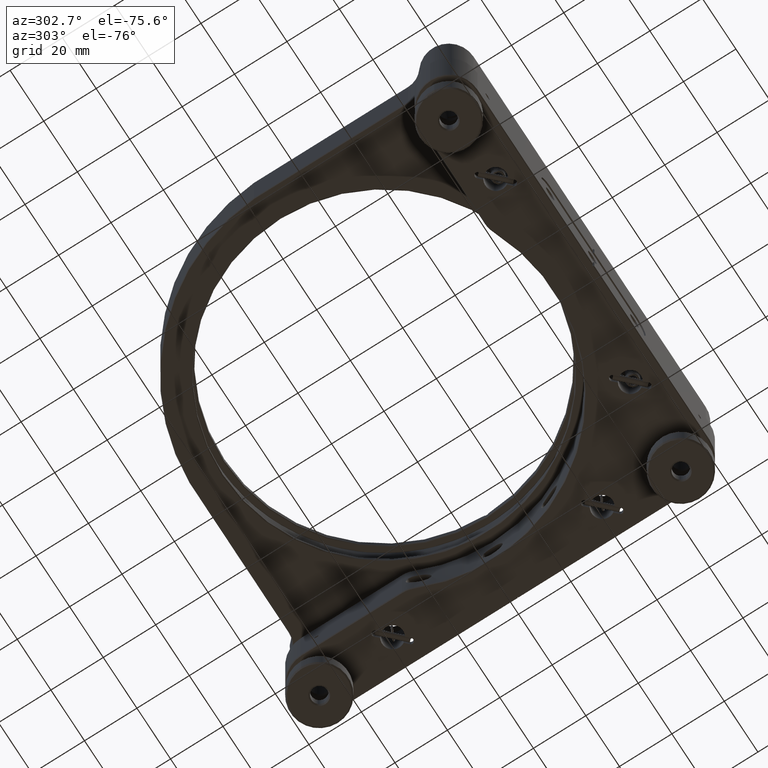
[diagram: clean part render]
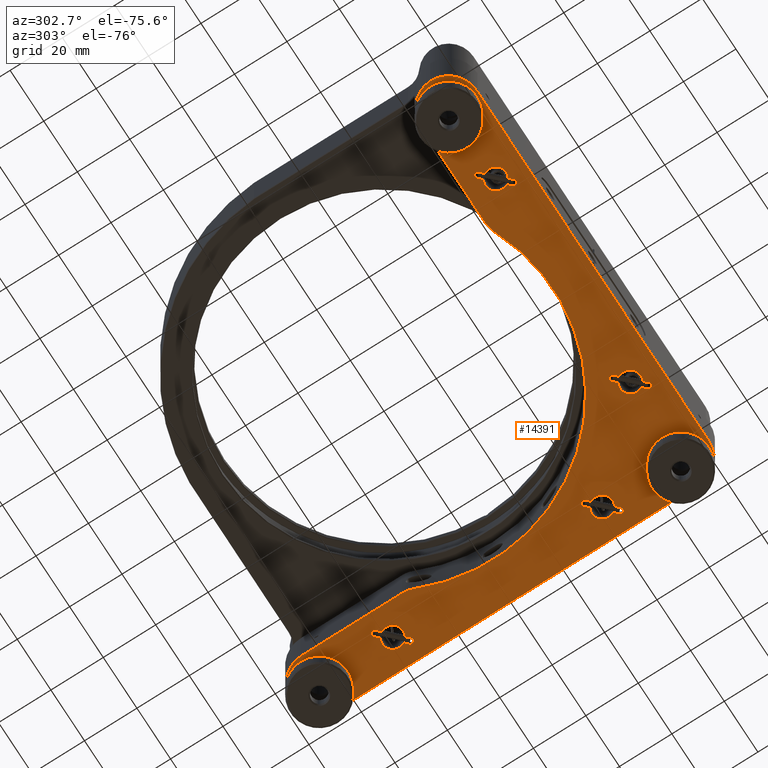
[diagram: same view with one face highlighted and labeled with its STEP entity id]
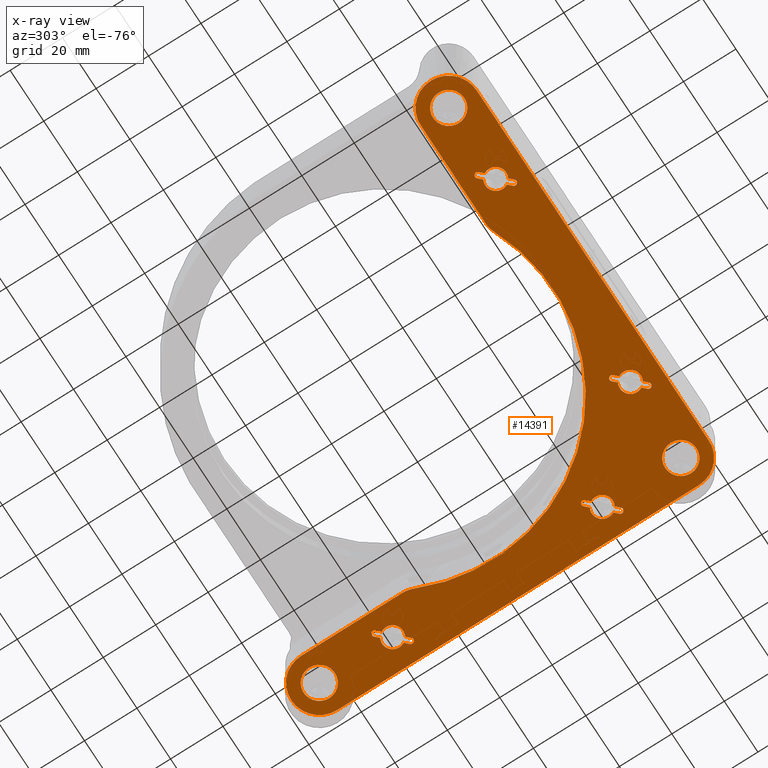
[diagram: x-ray of the same camera — body ghosted, the highlighted face saturated]
A machine part, auxiliary view. The second image highlights one B-rep face of the part: STEP entity #14391.
The next image is the same camera in x-ray: the body ghosted, the highlighted face saturated — about 0% of this face is hidden behind the body in this view.
In plain terms, the highlighted planar face has unit normal (-0, 0, 1).
Its self-contained STEP definition (entity closure, byte-faithful):
#23 = EDGE_CURVE ( 'NONE', #15942, #5312, #67, .T. ) ;
#67 = LINE ( 'NONE', #15234, #15540 ) ;
#164 = ORIENTED_EDGE ( 'NONE', *, *, #16631, .T. ) ;
#216 = CARTESIAN_POINT ( 'NONE',  ( 72.47170194114845287, -40.98677770065665271, -11.00000000000000000 ) ) ;
#254 = ORIENTED_EDGE ( 'NONE', *, *, #13206, .T. ) ;
#339 = CIRCLE ( 'NONE', #1488, 4.000000000000010658 ) ;
#356 = ORIENTED_EDGE ( 'NONE', *, *, #3056, .T. ) ;
#361 = VERTEX_POINT ( 'NONE', #8864 ) ;
#375 = VERTEX_POINT ( 'NONE', #14433 ) ;
#386 = VERTEX_POINT ( 'NONE', #12987 ) ;
#390 = VECTOR ( 'NONE', #3103, 1000.000000000000000 ) ;
#508 = EDGE_CURVE ( 'NONE', #10541, #8241, #10234, .T. ) ;
#535 = VERTEX_POINT ( 'NONE', #3264 ) ;
#565 = DIRECTION ( 'NONE',  ( 0.7071067811865492381, -0.7071067811865457964, 0.000000000000000000 ) ) ;
#596 = DIRECTION ( 'NONE',  ( 0.7071067811865492381, -0.7071067811865457964, 0.000000000000000000 ) ) ;
#597 = VERTEX_POINT ( 'NONE', #10413 ) ;
#655 = AXIS2_PLACEMENT_3D ( 'NONE', #17487, #795, #10389 ) ;
#683 = AXIS2_PLACEMENT_3D ( 'NONE', #10656, #10931, #13671 ) ;
#696 = VECTOR ( 'NONE', #2610, 1000.000000000000114 ) ;
#720 = CARTESIAN_POINT ( 'NONE',  ( -68.99999999999998579, -69.00000000000001421, -11.00000000000000000 ) ) ;
#774 = DIRECTION ( 'NONE',  ( -0.000000000000000000, 0.000000000000000000, 1.000000000000000000 ) ) ;
#782 = CARTESIAN_POINT ( 'NONE',  ( 64.82806999099939560, 45.17193000900061861, -11.00000000000000000 ) ) ;
#783 = CARTESIAN_POINT ( 'NONE',  ( 63.00000000000002842, -69.00000000000002842, -11.00000000000000000 ) ) ;
#795 = DIRECTION ( 'NONE',  ( -0.000000000000000000, -0.000000000000000000, -1.000000000000000000 ) ) ;
#808 = ORIENTED_EDGE ( 'NONE', *, *, #13603, .F. ) ;
#856 = VERTEX_POINT ( 'NONE', #1441 ) ;
#869 = LINE ( 'NONE', #6436, #11494 ) ;
#877 = VERTEX_POINT ( 'NONE', #7117 ) ;
#886 = CARTESIAN_POINT ( 'NONE',  ( 34.08560787075354170, -65.57053211124527081, -11.00000000000000000 ) ) ;
#894 = DIRECTION ( 'NONE',  ( -1.000000000000000000, 0.000000000000000000, 0.000000000000000000 ) ) ;
#901 = VERTEX_POINT ( 'NONE', #2986 ) ;
#902 = DIRECTION ( 'NONE',  ( 1.000000000000000000, 0.000000000000000000, 0.000000000000000000 ) ) ;
#915 = LINE ( 'NONE', #9326, #5105 ) ;
#931 = DIRECTION ( 'NONE',  ( 1.000000000000000000, 0.000000000000000000, 0.000000000000000000 ) ) ;
#979 = CARTESIAN_POINT ( 'NONE',  ( 70.98677770065671666, -42.47170194114839603, -11.00000000000000000 ) ) ;
#985 = VECTOR ( 'NONE', #8300, 1000.000000000000114 ) ;
#1055 = DIRECTION ( 'NONE',  ( 0.000000000000000000, -0.000000000000000000, -1.000000000000000000 ) ) ;
#1069 = EDGE_CURVE ( 'NONE', #361, #15789, #15867, .T. ) ;
#1080 = CIRCLE ( 'NONE', #17397, 1.049999999999995381 ) ;
#1084 = CARTESIAN_POINT ( 'NONE',  ( 39.00000000000003553, -69.00000000000002842, -11.00000000000000000 ) ) ;
#1137 = DIRECTION ( 'NONE',  ( 1.000000000000000000, 0.000000000000000000, 0.000000000000000000 ) ) ;
#1167 = AXIS2_PLACEMENT_3D ( 'NONE', #4495, #10344, #8793 ) ;
#1195 = DIRECTION ( 'NONE',  ( 0.000000000000000000, -0.000000000000000000, -1.000000000000000000 ) ) ;
#1219 = CARTESIAN_POINT ( 'NONE',  ( 73.17193000900067545, 36.82806999099937428, -11.00000000000000000 ) ) ;
#1244 = AXIS2_PLACEMENT_3D ( 'NONE', #15272, #1195, #8508 ) ;
#1403 = CARTESIAN_POINT ( 'NONE',  ( -40.99999999999996447, -69.00000000000004263, -11.00000000000000000 ) ) ;
#1441 = CARTESIAN_POINT ( 'NONE',  ( -45.91439212924645830, -65.57053211124527081, -11.00000000000000000 ) ) ;
#1488 = AXIS2_PLACEMENT_3D ( 'NONE', #13750, #5502, #6788 ) ;
#1496 = LINE ( 'NONE', #14120, #4508 ) ;
#1554 = EDGE_CURVE ( 'NONE', #16897, #11020, #8594, .T. ) ;
#1592 = AXIS2_PLACEMENT_3D ( 'NONE', #3205, #10350, #13016 ) ;
#1594 = DIRECTION ( 'NONE',  ( 0.7071067811865495711, 0.7071067811865455743, 0.000000000000000000 ) ) ;
#1623 = VERTEX_POINT ( 'NONE', #5956 ) ;
#1694 = VERTEX_POINT ( 'NONE', #7241 ) ;
#1771 = EDGE_CURVE ( 'NONE', #7363, #2870, #1925, .T. ) ;
#1790 = EDGE_CURVE ( 'NONE', #7107, #3802, #10061, .T. ) ;
#1803 = AXIS2_PLACEMENT_3D ( 'NONE', #16110, #3594, #7820 ) ;
#1815 = ORIENTED_EDGE ( 'NONE', *, *, #3611, .T. ) ;
#1824 = ORIENTED_EDGE ( 'NONE', *, *, #2758, .F. ) ;
#1832 = VECTOR ( 'NONE', #6546, 1000.000000000000114 ) ;
#1865 = LINE ( 'NONE', #14309, #6238 ) ;
#1888 = CARTESIAN_POINT ( 'NONE',  ( 79.70000000000000284, -69.00000000000002842, -11.00000000000000000 ) ) ;
#1925 = LINE ( 'NONE', #8980, #12977 ) ;
#1955 = ORIENTED_EDGE ( 'NONE', *, *, #11897, .F. ) ;
#1993 = CARTESIAN_POINT ( 'NONE',  ( 0.1999999999999693134, -79.69999999999998863, -11.00000000000000000 ) ) ;
#1997 = DIRECTION ( 'NONE',  ( 0.000000000000000000, -1.000000000000000000, 0.000000000000000000 ) ) ;
#2025 = CIRCLE ( 'NONE', #9043, 6.000000000000005329 ) ;
#2089 = CARTESIAN_POINT ( 'NONE',  ( 69.00000000000002842, -69.00000000000002842, -11.00000000000000000 ) ) ;
#2124 = VECTOR ( 'NONE', #3182, 1000.000000000000000 ) ;
#2195 = EDGE_CURVE ( 'NONE', #7255, #5155, #9188, .T. ) ;
#2276 = CARTESIAN_POINT ( 'NONE',  ( 63.77806999099941265, -34.82806999099938139, -11.00000000000000000 ) ) ;
#2302 = CARTESIAN_POINT ( 'NONE',  ( 65.57053211124527081, -34.08560787075351328, -11.00000000000000000 ) ) ;
#2339 = LINE ( 'NONE', #9216, #6085 ) ;
#2361 = VECTOR ( 'NONE', #12176, 1000.000000000000000 ) ;
#2369 = CARTESIAN_POINT ( 'NONE',  ( 75.00000000000001421, 69.00000000000001421, -11.00000000000000000 ) ) ;
#2407 = CIRCLE ( 'NONE', #13224, 4.000000000000010658 ) ;
#2434 = CIRCLE ( 'NONE', #13831, 1.049999999999995381 ) ;
#2442 = CARTESIAN_POINT ( 'NONE',  ( 64.08560787075353460, 44.42946788875474340, -11.00000000000000000 ) ) ;
#2447 = AXIS2_PLACEMENT_3D ( 'NONE', #5062, #9477, #9282 ) ;
#2468 = CARTESIAN_POINT ( 'NONE',  ( -36.08560787075347775, -72.42946788875481445, -11.00000000000000000 ) ) ;
#2561 = PLANE ( 'NONE',  #6205 ) ;
#2588 = DIRECTION ( 'NONE',  ( -0.000000000000000000, 0.000000000000000000, 1.000000000000000000 ) ) ;
#2603 = VERTEX_POINT ( 'NONE', #9362 ) ;
#2610 = DIRECTION ( 'NONE',  ( -0.7071067811865453523, -0.7071067811865497932, 0.000000000000000000 ) ) ;
#2618 = ORIENTED_EDGE ( 'NONE', *, *, #2195, .F. ) ;
#2655 = DIRECTION ( 'NONE',  ( -0.000000000000000000, 0.000000000000000000, 1.000000000000000000 ) ) ;
#2692 = DIRECTION ( 'NONE',  ( -0.000000000000000000, 0.000000000000000000, -1.000000000000000000 ) ) ;
#2748 = CARTESIAN_POINT ( 'NONE',  ( -30.43435558706626765, -58.30000000000008242, -11.00000000000000000 ) ) ;
#2758 = EDGE_CURVE ( 'NONE', #7403, #17952, #339, .T. ) ;
#2769 = VERTEX_POINT ( 'NONE', #17930 ) ;
#2870 = VERTEX_POINT ( 'NONE', #9814 ) ;
#2897 = CIRCLE ( 'NONE', #16865, 1.049999999999995381 ) ;
#2908 = CIRCLE ( 'NONE', #13698, 4.000000000000010658 ) ;
#2911 = CARTESIAN_POINT ( 'NONE',  ( -0.000000000000000000, -79.69999999999998863, -11.00000000000000000 ) ) ;
#2983 = CARTESIAN_POINT ( 'NONE',  ( 69.00000000000002842, 40.99999999999999289, -11.00000000000000000 ) ) ;
#2986 = CARTESIAN_POINT ( 'NONE',  ( 37.01322229934338282, -65.52829805885163239, -11.00000000000000000 ) ) ;
#3045 = EDGE_CURVE ( 'NONE', #18055, #6003, #10805, .T. ) ;
#3053 = VERTEX_POINT ( 'NONE', #3198 ) ;
#3056 = EDGE_CURVE ( 'NONE', #2603, #7363, #5545, .T. ) ;
#3103 = DIRECTION ( 'NONE',  ( 1.000000000000000000, -1.340017918906925940E-16, 0.000000000000000000 ) ) ;
#3141 = DIRECTION ( 'NONE',  ( 0.000000000000000000, 1.000000000000000000, 0.000000000000000000 ) ) ;
#3151 = EDGE_LOOP ( 'NONE', ( #11229, #1815, #13338, #8620, #8153, #14620, #3489, #14207, #14381, #9400, #356 ) ) ;
#3166 = DIRECTION ( 'NONE',  ( 0.000000000000000000, -0.000000000000000000, 1.000000000000000000 ) ) ;
#3182 = DIRECTION ( 'NONE',  ( 0.000000000000000000, 1.000000000000000000, 0.000000000000000000 ) ) ;
#3198 = CARTESIAN_POINT ( 'NONE',  ( 63.00000000000000000, 69.00000000000001421, -11.00000000000000000 ) ) ;
#3205 = CARTESIAN_POINT ( 'NONE',  ( 0.000000000000000000, 0.000000000000000000, -11.00000000000000000 ) ) ;
#3206 = VECTOR ( 'NONE', #3966, 1000.000000000000000 ) ;
#3244 = EDGE_CURVE ( 'NONE', #16373, #3053, #2025, .T. ) ;
#3264 = CARTESIAN_POINT ( 'NONE',  ( -0.1999999999999888256, -79.69999999999998863, -11.00000000000000000 ) ) ;
#3300 = ORIENTED_EDGE ( 'NONE', *, *, #12863, .F. ) ;
#3422 = VECTOR ( 'NONE', #11687, 1000.000000000000000 ) ;
#3456 = ORIENTED_EDGE ( 'NONE', *, *, #23, .T. ) ;
#3470 = CARTESIAN_POINT ( 'NONE',  ( -40.99999999999996447, -69.00000000000004263, -11.00000000000000000 ) ) ;
#3479 = DIRECTION ( 'NONE',  ( -0.000000000000000000, 0.000000000000000000, 1.000000000000000000 ) ) ;
#3489 = ORIENTED_EDGE ( 'NONE', *, *, #15388, .T. ) ;
#3495 = CIRCLE ( 'NONE', #15767, 4.000000000000010658 ) ;
#3527 = DIRECTION ( 'NONE',  ( -0.7071067811865492381, 0.7071067811865457964, 0.000000000000000000 ) ) ;
#3534 = CARTESIAN_POINT ( 'NONE',  ( 35.00000000000002132, -69.00000000000002842, -11.00000000000000000 ) ) ;
#3576 = DIRECTION ( 'NONE',  ( -0.000000000000000000, 0.000000000000000000, 1.000000000000000000 ) ) ;
#3594 = DIRECTION ( 'NONE',  ( 0.000000000000000000, 0.000000000000000000, 1.000000000000000000 ) ) ;
#3611 = EDGE_CURVE ( 'NONE', #2870, #3762, #11992, .T. ) ;
#3620 = AXIS2_PLACEMENT_3D ( 'NONE', #1219, #2588, #12480 ) ;
#3719 = AXIS2_PLACEMENT_3D ( 'NONE', #16884, #13983, #12713 ) ;
#3762 = VERTEX_POINT ( 'NONE', #14777 ) ;
#3769 = CARTESIAN_POINT ( 'NONE',  ( 69.00000000000002842, -79.70000000000000284, -11.00000000000000000 ) ) ;
#3802 = VERTEX_POINT ( 'NONE', #17310 ) ;
#3835 = CARTESIAN_POINT ( 'NONE',  ( 69.00000000000000000, 69.00000000000001421, -11.00000000000000000 ) ) ;
#3836 = DIRECTION ( 'NONE',  ( 0.000000000000000000, 0.000000000000000000, -1.000000000000000000 ) ) ;
#3848 = VERTEX_POINT ( 'NONE', #979 ) ;
#3875 = CIRCLE ( 'NONE', #15558, 1.049999999999995381 ) ;
#3918 = CARTESIAN_POINT ( 'NONE',  ( 35.57053211124528502, -64.08560787075353460, -11.00000000000000000 ) ) ;
#3934 = DIRECTION ( 'NONE',  ( 0.000000000000000000, -1.000000000000000000, 0.000000000000000000 ) ) ;
#3966 = DIRECTION ( 'NONE',  ( -0.7071067811865492381, 0.7071067811865457964, 0.000000000000000000 ) ) ;
#4098 = VERTEX_POINT ( 'NONE', #9994 ) ;
#4159 = AXIS2_PLACEMENT_3D ( 'NONE', #11994, #3836, #9059 ) ;
#4173 = ORIENTED_EDGE ( 'NONE', *, *, #11024, .F. ) ;
#4174 = DIRECTION ( 'NONE',  ( 1.734723475976807094E-16, -1.000000000000000000, 0.000000000000000000 ) ) ;
#4200 = FACE_BOUND ( 'NONE', #3151, .T. ) ;
#4239 = DIRECTION ( 'NONE',  ( -1.000000000000000000, 0.000000000000000000, 0.000000000000000000 ) ) ;
#4258 = EDGE_CURVE ( 'NONE', #17758, #17781, #7702, .T. ) ;
#4277 = EDGE_CURVE ( 'NONE', #1623, #13877, #10832, .T. ) ;
#4335 = CARTESIAN_POINT ( 'NONE',  ( 43.91439212924652935, -72.42946788875480024, -11.00000000000000000 ) ) ;
#4372 = AXIS2_PLACEMENT_3D ( 'NONE', #5598, #9645, #1137 ) ;
#4389 = EDGE_CURVE ( 'NONE', #14667, #5538, #5270, .T. ) ;
#4449 = CIRCLE ( 'NONE', #1244, 10.69999999999997264 ) ;
#4495 = CARTESIAN_POINT ( 'NONE',  ( 64.82806999099939560, 45.17193000900061861, -11.00000000000000000 ) ) ;
#4508 = VECTOR ( 'NONE', #4239, 1000.000000000000000 ) ;
#4545 = DIRECTION ( 'NONE',  ( 0.000000000000000000, -1.000000000000000000, 0.000000000000000000 ) ) ;
#4549 = VERTEX_POINT ( 'NONE', #5303 ) ;
#4613 = CARTESIAN_POINT ( 'NONE',  ( 72.47170194114843866, 39.01322229934334729, -11.00000000000000000 ) ) ;
#4716 = CARTESIAN_POINT ( 'NONE',  ( 64.82806999099940981, -34.82806999099938139, -11.00000000000000000 ) ) ;
#4741 = CIRCLE ( 'NONE', #4159, 1.049999999999995381 ) ;
#4813 = CARTESIAN_POINT ( 'NONE',  ( 79.69999999999998863, 0.2000000000000241029, -11.00000000000000000 ) ) ;
#4824 = DIRECTION ( 'NONE',  ( 0.000000000000000000, 0.000000000000000000, 1.000000000000000000 ) ) ;
#4825 = EDGE_CURVE ( 'NONE', #17952, #597, #7558, .T. ) ;
#4841 = CARTESIAN_POINT ( 'NONE',  ( -46.22193000900058735, -64.82806999099940981, -11.00000000000000000 ) ) ;
#4856 = DIRECTION ( 'NONE',  ( 0.000000000000000000, 1.000000000000000000, 0.000000000000000000 ) ) ;
#4942 = EDGE_CURVE ( 'NONE', #17569, #5760, #6501, .T. ) ;
#4995 = CARTESIAN_POINT ( 'NONE',  ( -68.99999999999998579, -69.00000000000001421, -11.00000000000000000 ) ) ;
#5062 = CARTESIAN_POINT ( 'NONE',  ( 69.00000000000002842, 40.99999999999999289, -11.00000000000000000 ) ) ;
#5105 = VECTOR ( 'NONE', #13533, 1000.000000000000114 ) ;
#5122 = EDGE_CURVE ( 'NONE', #6003, #5915, #16503, .T. ) ;
#5155 = VERTEX_POINT ( 'NONE', #17680 ) ;
#5163 = ORIENTED_EDGE ( 'NONE', *, *, #11761, .T. ) ;
#5167 = EDGE_CURVE ( 'NONE', #17781, #15942, #9573, .T. ) ;
#5270 = CIRCLE ( 'NONE', #6444, 1.049999999999995381 ) ;
#5292 = DIRECTION ( 'NONE',  ( 0.000000000000000000, 0.000000000000000000, 1.000000000000000000 ) ) ;
#5293 = EDGE_CURVE ( 'NONE', #7943, #856, #10023, .T. ) ;
#5303 = CARTESIAN_POINT ( 'NONE',  ( -79.69999999999996021, -69.00000000000002842, -11.00000000000000000 ) ) ;
#5312 = VERTEX_POINT ( 'NONE', #9751 ) ;
#5411 = ORIENTED_EDGE ( 'NONE', *, *, #3045, .F. ) ;
#5449 = ORIENTED_EDGE ( 'NONE', *, *, #5122, .F. ) ;
#5502 = DIRECTION ( 'NONE',  ( 0.000000000000000000, 0.000000000000000000, -1.000000000000000000 ) ) ;
#5534 = EDGE_CURVE ( 'NONE', #8771, #17209, #2434, .T. ) ;
#5538 = VERTEX_POINT ( 'NONE', #10457 ) ;
#5545 = CIRCLE ( 'NONE', #1167, 1.049999999999995381 ) ;
#5547 = VERTEX_POINT ( 'NONE', #6061 ) ;
#5598 = CARTESIAN_POINT ( 'NONE',  ( -68.99999999999998579, -69.00000000000004263, -11.00000000000000000 ) ) ;
#5658 = EDGE_LOOP ( 'NONE', ( #2618, #16552, #5914, #1955, #9385, #4173, #17061, #12234, #3300, #16867, #14994 ) ) ;
#5662 = DIRECTION ( 'NONE',  ( -0.000000000000000000, 0.000000000000000000, 1.000000000000000000 ) ) ;
#5724 = EDGE_CURVE ( 'NONE', #877, #10687, #15253, .T. ) ;
#5760 = VERTEX_POINT ( 'NONE', #3769 ) ;
#5781 = DIRECTION ( 'NONE',  ( 1.000000000000000000, 3.576749435003731010E-15, 0.000000000000000000 ) ) ;
#5849 = VERTEX_POINT ( 'NONE', #13928 ) ;
#5870 = LINE ( 'NONE', #15746, #11814 ) ;
#5892 = VERTEX_POINT ( 'NONE', #216 ) ;
#5914 = ORIENTED_EDGE ( 'NONE', *, *, #14325, .F. ) ;
#5915 = VERTEX_POINT ( 'NONE', #12829 ) ;
#5956 = CARTESIAN_POINT ( 'NONE',  ( -36.99999999999995737, -69.00000000000004263, -11.00000000000000000 ) ) ;
#5982 = DIRECTION ( 'NONE',  ( -1.000000000000000000, 0.000000000000000000, 0.000000000000000000 ) ) ;
#6003 = VERTEX_POINT ( 'NONE', #14362 ) ;
#6034 = VECTOR ( 'NONE', #13174, 1000.000000000000114 ) ;
#6061 = CARTESIAN_POINT ( 'NONE',  ( 70.98677770065670245, 37.52829805885160397, -11.00000000000000000 ) ) ;
#6085 = VECTOR ( 'NONE', #3527, 1000.000000000000000 ) ;
#6141 = EDGE_LOOP ( 'NONE', ( #11155, #254, #6906, #6507, #8063, #11518, #15291, #13748, #7187, #8245, #164 ) ) ;
#6205 = AXIS2_PLACEMENT_3D ( 'NONE', #12358, #2655, #10897 ) ;
#6238 = VECTOR ( 'NONE', #14486, 1000.000000000000114 ) ;
#6255 = DIRECTION ( 'NONE',  ( -0.000000000000000000, 0.000000000000000000, 1.000000000000000000 ) ) ;
#6282 = CARTESIAN_POINT ( 'NONE',  ( -39.01322229934331887, -72.47170194114845287, -11.00000000000000000 ) ) ;
#6304 = EDGE_LOOP ( 'NONE', ( #808, #6586 ) ) ;
#6320 = DIRECTION ( 'NONE',  ( -1.000000000000000000, 0.000000000000000000, 0.000000000000000000 ) ) ;
#6336 = CARTESIAN_POINT ( 'NONE',  ( 64.82806999099940981, -34.82806999099938139, -11.00000000000000000 ) ) ;
#6346 = DIRECTION ( 'NONE',  ( 0.000000000000000000, 1.000000000000000000, 0.000000000000000000 ) ) ;
#6436 = CARTESIAN_POINT ( 'NONE',  ( 64.08560787075353460, -35.57053211124525660, -11.00000000000000000 ) ) ;
#6444 = AXIS2_PLACEMENT_3D ( 'NONE', #9886, #5662, #16456 ) ;
#6492 = AXIS2_PLACEMENT_3D ( 'NONE', #17452, #3576, #4856 ) ;
#6501 = CIRCLE ( 'NONE', #8567, 10.69999999999997264 ) ;
#6507 = ORIENTED_EDGE ( 'NONE', *, *, #7086, .T. ) ;
#6537 = VERTEX_POINT ( 'NONE', #4841 ) ;
#6544 = CIRCLE ( 'NONE', #11231, 4.000000000000010658 ) ;
#6546 = DIRECTION ( 'NONE',  ( -0.7071067811865460184, 0.7071067811865489050, -0.000000000000000000 ) ) ;
#6578 = DIRECTION ( 'NONE',  ( 0.7071067811865460184, -0.7071067811865489050, 0.000000000000000000 ) ) ;
#6586 = ORIENTED_EDGE ( 'NONE', *, *, #3244, .F. ) ;
#6592 = CARTESIAN_POINT ( 'NONE',  ( 79.69999999999998863, 1.382574610353515096E-14, -11.00000000000000000 ) ) ;
#6595 = EDGE_CURVE ( 'NONE', #7816, #17246, #12999, .T. ) ;
#6622 = AXIS2_PLACEMENT_3D ( 'NONE', #4995, #4824, #902 ) ;
#6658 = DIRECTION ( 'NONE',  ( -1.000000000000000000, 0.000000000000000000, 0.000000000000000000 ) ) ;
#6679 = FACE_BOUND ( 'NONE', #6141, .T. ) ;
#6724 = CARTESIAN_POINT ( 'NONE',  ( 80.00000000000001421, 0.5000000000000486278, -11.00000000000000000 ) ) ;
#6741 = CARTESIAN_POINT ( 'NONE',  ( 58.30000000000006111, 30.43435558706632094, -11.00000000000000000 ) ) ;
#6765 = CARTESIAN_POINT ( 'NONE',  ( 58.30000000000006111, 68.99999999999998579, -11.00000000000000000 ) ) ;
#6788 = DIRECTION ( 'NONE',  ( -1.000000000000000000, 0.000000000000000000, 0.000000000000000000 ) ) ;
#6794 = CIRCLE ( 'NONE', #8551, 4.000000000000010658 ) ;
#6813 = AXIS2_PLACEMENT_3D ( 'NONE', #782, #6255, #6346 ) ;
#6841 = ORIENTED_EDGE ( 'NONE', *, *, #17358, .F. ) ;
#6877 = VERTEX_POINT ( 'NONE', #2468 ) ;
#6881 = VERTEX_POINT ( 'NONE', #13359 ) ;
#6906 = ORIENTED_EDGE ( 'NONE', *, *, #9306, .T. ) ;
#6932 = CARTESIAN_POINT ( 'NONE',  ( 79.69999999999998863, 1.382574610353515096E-14, -11.00000000000000000 ) ) ;
#6983 = DIRECTION ( 'NONE',  ( -0.000000000000000000, 0.000000000000000000, -1.000000000000000000 ) ) ;
#6988 = EDGE_CURVE ( 'NONE', #597, #5849, #16850, .T. ) ;
#6989 = ORIENTED_EDGE ( 'NONE', *, *, #5167, .T. ) ;
#7086 = EDGE_CURVE ( 'NONE', #3848, #14667, #10312, .T. ) ;
#7094 = DIRECTION ( 'NONE',  ( 0.000000000000000000, 0.000000000000000000, -1.000000000000000000 ) ) ;
#7107 = VERTEX_POINT ( 'NONE', #11782 ) ;
#7117 = CARTESIAN_POINT ( 'NONE',  ( 75.00000000000004263, -69.00000000000002842, -11.00000000000000000 ) ) ;
#7151 = CIRCLE ( 'NONE', #11540, 1.049999999999995381 ) ;
#7187 = ORIENTED_EDGE ( 'NONE', *, *, #12127, .T. ) ;
#7206 = AXIS2_PLACEMENT_3D ( 'NONE', #720, #7568, #8943 ) ;
#7235 = DIRECTION ( 'NONE',  ( 0.000000000000000000, 0.000000000000000000, -1.000000000000000000 ) ) ;
#7241 = CARTESIAN_POINT ( 'NONE',  ( -68.99999999999998579, -79.69999999999998863, -11.00000000000000000 ) ) ;
#7255 = VERTEX_POINT ( 'NONE', #6282 ) ;
#7271 = VECTOR ( 'NONE', #6578, 1000.000000000000114 ) ;
#7297 = EDGE_LOOP ( 'NONE', ( #15330, #5449, #5411, #6841, #17577, #11001, #9881, #14558, #10127, #10368, #1824 ) ) ;
#7363 = VERTEX_POINT ( 'NONE', #2442 ) ;
#7403 = VERTEX_POINT ( 'NONE', #3534 ) ;
#7434 = CIRCLE ( 'NONE', #8040, 6.000000000000005329 ) ;
#7436 = AXIS2_PLACEMENT_3D ( 'NONE', #15221, #2692, #18038 ) ;
#7558 = LINE ( 'NONE', #13144, #12934 ) ;
#7568 = DIRECTION ( 'NONE',  ( 0.000000000000000000, -0.000000000000000000, -1.000000000000000000 ) ) ;
#7696 = DIRECTION ( 'NONE',  ( 0.000000000000000000, 0.000000000000000000, 1.000000000000000000 ) ) ;
#7702 = LINE ( 'NONE', #6592, #2361 ) ;
#7816 = VERTEX_POINT ( 'NONE', #10913 ) ;
#7820 = DIRECTION ( 'NONE',  ( 1.000000000000000000, 0.000000000000000000, 0.000000000000000000 ) ) ;
#7896 = CARTESIAN_POINT ( 'NONE',  ( 64.08560787075353460, -35.57053211124525660, -11.00000000000000000 ) ) ;
#7943 = VERTEX_POINT ( 'NONE', #9359 ) ;
#8040 = AXIS2_PLACEMENT_3D ( 'NONE', #2089, #5292, #11248 ) ;
#8063 = ORIENTED_EDGE ( 'NONE', *, *, #4389, .T. ) ;
#8086 = EDGE_CURVE ( 'NONE', #5915, #7403, #2407, .T. ) ;
#8153 = ORIENTED_EDGE ( 'NONE', *, *, #1554, .T. ) ;
#8158 = FACE_BOUND ( 'NONE', #12375, .T. ) ;
#8184 = EDGE_CURVE ( 'NONE', #11416, #2769, #12067, .T. ) ;
#8214 = CIRCLE ( 'NONE', #9365, 10.69999999999997264 ) ;
#8241 = VERTEX_POINT ( 'NONE', #6765 ) ;
#8245 = ORIENTED_EDGE ( 'NONE', *, *, #5534, .T. ) ;
#8255 = CARTESIAN_POINT ( 'NONE',  ( 79.50000000000001421, 4.504103423630144120E-14, -11.00000000000000000 ) ) ;
#8300 = DIRECTION ( 'NONE',  ( -0.7071067811865460184, 0.7071067811865489050, -0.000000000000000000 ) ) ;
#8373 = CARTESIAN_POINT ( 'NONE',  ( 65.57053211124527081, 45.91439212924648672, -11.00000000000000000 ) ) ;
#8377 = CARTESIAN_POINT ( 'NONE',  ( -0.5000000000000129896, -80.00000000000001421, -11.00000000000000000 ) ) ;
#8429 = FACE_OUTER_BOUND ( 'NONE', #12867, .T. ) ;
#8457 = DIRECTION ( 'NONE',  ( 0.000000000000000000, -0.000000000000000000, -1.000000000000000000 ) ) ;
#8502 = DIRECTION ( 'NONE',  ( -1.000000000000000000, 0.000000000000000000, 0.000000000000000000 ) ) ;
#8508 = DIRECTION ( 'NONE',  ( 1.000000000000000000, 0.000000000000000000, 0.000000000000000000 ) ) ;
#8541 = CIRCLE ( 'NONE', #6492, 4.000000000000010658 ) ;
#8551 = AXIS2_PLACEMENT_3D ( 'NONE', #17609, #9317, #14882 ) ;
#8567 = AXIS2_PLACEMENT_3D ( 'NONE', #11863, #10480, #13054 ) ;
#8594 = CIRCLE ( 'NONE', #3620, 1.049999999999995381 ) ;
#8615 = DIRECTION ( 'NONE',  ( 0.000000000000000000, -0.000000000000000000, 1.000000000000000000 ) ) ;
#8620 = ORIENTED_EDGE ( 'NONE', *, *, #14784, .T. ) ;
#8626 = CARTESIAN_POINT ( 'NONE',  ( 43.17193000900066124, -73.17193000900067545, -11.00000000000000000 ) ) ;
#8729 = VECTOR ( 'NONE', #4174, 1000.000000000000000 ) ;
#8739 = VERTEX_POINT ( 'NONE', #4613 ) ;
#8771 = VERTEX_POINT ( 'NONE', #10282 ) ;
#8781 = EDGE_CURVE ( 'NONE', #9425, #2603, #10325, .T. ) ;
#8793 = DIRECTION ( 'NONE',  ( 0.000000000000000000, 1.000000000000000000, 0.000000000000000000 ) ) ;
#8850 = EDGE_CURVE ( 'NONE', #15828, #12719, #869, .T. ) ;
#8864 = CARTESIAN_POINT ( 'NONE',  ( 73.00000000000005684, 40.99999999999999289, -11.00000000000000000 ) ) ;
#8941 = CARTESIAN_POINT ( 'NONE',  ( 79.69999999999998863, 68.99999999999998579, -11.00000000000000000 ) ) ;
#8943 = DIRECTION ( 'NONE',  ( 1.000000000000000000, 0.000000000000000000, 0.000000000000000000 ) ) ;
#8962 = VERTEX_POINT ( 'NONE', #12208 ) ;
#8980 = CARTESIAN_POINT ( 'NONE',  ( 64.08560787075353460, 44.42946788875474340, -11.00000000000000000 ) ) ;
#9010 = EDGE_CURVE ( 'NONE', #9225, #12105, #13241, .T. ) ;
#9027 = EDGE_CURVE ( 'NONE', #14473, #7107, #15565, .T. ) ;
#9042 = LINE ( 'NONE', #17344, #7271 ) ;
#9043 = AXIS2_PLACEMENT_3D ( 'NONE', #3835, #11074, #3934 ) ;
#9059 = DIRECTION ( 'NONE',  ( -1.000000000000000000, 0.000000000000000000, 0.000000000000000000 ) ) ;
#9069 = DIRECTION ( 'NONE',  ( 0.000000000000000000, 1.000000000000000000, 0.000000000000000000 ) ) ;
#9139 = LINE ( 'NONE', #13534, #13119 ) ;
#9150 = ORIENTED_EDGE ( 'NONE', *, *, #14519, .T. ) ;
#9187 = EDGE_CURVE ( 'NONE', #5538, #5892, #9824, .T. ) ;
#9188 = CIRCLE ( 'NONE', #7436, 4.000000000000010658 ) ;
#9216 = CARTESIAN_POINT ( 'NONE',  ( 65.57053211124527081, 45.91439212924648672, -11.00000000000000000 ) ) ;
#9225 = VERTEX_POINT ( 'NONE', #12660 ) ;
#9238 = ORIENTED_EDGE ( 'NONE', *, *, #13372, .T. ) ;
#9267 = ORIENTED_EDGE ( 'NONE', *, *, #10920, .T. ) ;
#9282 = DIRECTION ( 'NONE',  ( 0.000000000000000000, -1.000000000000000000, 0.000000000000000000 ) ) ;
#9306 = EDGE_CURVE ( 'NONE', #386, #3848, #8541, .T. ) ;
#9317 = DIRECTION ( 'NONE',  ( -0.000000000000000000, 0.000000000000000000, 1.000000000000000000 ) ) ;
#9326 = CARTESIAN_POINT ( 'NONE',  ( 35.57053211124528502, -64.08560787075353460, -11.00000000000000000 ) ) ;
#9359 = CARTESIAN_POINT ( 'NONE',  ( -44.47170194114836050, -67.01322229934338282, -11.00000000000000000 ) ) ;
#9362 = CARTESIAN_POINT ( 'NONE',  ( 63.77806999099939844, 45.17193000900061861, -11.00000000000000000 ) ) ;
#9365 = AXIS2_PLACEMENT_3D ( 'NONE', #15077, #14986, #16527 ) ;
#9385 = ORIENTED_EDGE ( 'NONE', *, *, #4277, .F. ) ;
#9400 = ORIENTED_EDGE ( 'NONE', *, *, #8781, .T. ) ;
#9425 = VERTEX_POINT ( 'NONE', #13647 ) ;
#9477 = DIRECTION ( 'NONE',  ( 0.000000000000000000, -0.000000000000000000, 1.000000000000000000 ) ) ;
#9498 = CARTESIAN_POINT ( 'NONE',  ( 72.42946788875480024, 36.08560787075350618, -11.00000000000000000 ) ) ;
#9507 = LINE ( 'NONE', #6932, #8729 ) ;
#9560 = VECTOR ( 'NONE', #8502, 1000.000000000000000 ) ;
#9573 = LINE ( 'NONE', #6724, #696 ) ;
#9631 = VERTEX_POINT ( 'NONE', #16812 ) ;
#9645 = DIRECTION ( 'NONE',  ( 0.000000000000000000, -0.000000000000000000, -1.000000000000000000 ) ) ;
#9648 = ORIENTED_EDGE ( 'NONE', *, *, #15630, .T. ) ;
#9654 = ORIENTED_EDGE ( 'NONE', *, *, #4942, .T. ) ;
#9751 = CARTESIAN_POINT ( 'NONE',  ( 79.69999999999998863, -0.1999999999999349798, -11.00000000000000000 ) ) ;
#9757 = EDGE_CURVE ( 'NONE', #6537, #4098, #1080, .T. ) ;
#9785 = CARTESIAN_POINT ( 'NONE',  ( -75.00000000000000000, -69.00000000000001421, -11.00000000000000000 ) ) ;
#9814 = CARTESIAN_POINT ( 'NONE',  ( 65.52829805885163239, 42.98677770065664561, -11.00000000000000000 ) ) ;
#9824 = LINE ( 'NONE', #14115, #15532 ) ;
#9851 = EDGE_CURVE ( 'NONE', #1694, #4549, #16540, .T. ) ;
#9881 = ORIENTED_EDGE ( 'NONE', *, *, #17193, .F. ) ;
#9886 = CARTESIAN_POINT ( 'NONE',  ( 73.17193000900068967, -43.17193000900062572, -11.00000000000000000 ) ) ;
#9935 = ORIENTED_EDGE ( 'NONE', *, *, #10108, .T. ) ;
#9958 = AXIS2_PLACEMENT_3D ( 'NONE', #3470, #16363, #931 ) ;
#9994 = CARTESIAN_POINT ( 'NONE',  ( -44.42946788875471498, -64.08560787075353460, -11.00000000000000000 ) ) ;
#10023 = LINE ( 'NONE', #16849, #985 ) ;
#10032 = VERTEX_POINT ( 'NONE', #16452 ) ;
#10061 = CIRCLE ( 'NONE', #1592, 64.80000000000002558 ) ;
#10072 = VECTOR ( 'NONE', #10535, 1000.000000000000000 ) ;
#10108 = EDGE_CURVE ( 'NONE', #535, #1694, #15443, .T. ) ;
#10127 = ORIENTED_EDGE ( 'NONE', *, *, #6988, .F. ) ;
#10234 = LINE ( 'NONE', #15714, #2124 ) ;
#10265 = EDGE_CURVE ( 'NONE', #2769, #11416, #14496, .T. ) ;
#10282 = CARTESIAN_POINT ( 'NONE',  ( 65.57053211124527081, -34.08560787075351328, -11.00000000000000000 ) ) ;
#10297 = DIRECTION ( 'NONE',  ( -0.7071067811865460184, 0.7071067811865489050, -0.000000000000000000 ) ) ;
#10309 = DIRECTION ( 'NONE',  ( 0.000000000000000000, 1.000000000000000000, 0.000000000000000000 ) ) ;
#10312 = LINE ( 'NONE', #14335, #3422 ) ;
#10317 = AXIS2_PLACEMENT_3D ( 'NONE', #17960, #16073, #17865 ) ;
#10325 = CIRCLE ( 'NONE', #6813, 1.049999999999995381 ) ;
#10344 = DIRECTION ( 'NONE',  ( -0.000000000000000000, 0.000000000000000000, 1.000000000000000000 ) ) ;
#10350 = DIRECTION ( 'NONE',  ( -0.000000000000000000, 0.000000000000000000, 1.000000000000000000 ) ) ;
#10354 = DIRECTION ( 'NONE',  ( 0.000000000000000000, 0.000000000000000000, -1.000000000000000000 ) ) ;
#10357 = VECTOR ( 'NONE', #1594, 1000.000000000000114 ) ;
#10368 = ORIENTED_EDGE ( 'NONE', *, *, #4825, .F. ) ;
#10389 = DIRECTION ( 'NONE',  ( 0.000000000000000000, -1.000000000000000000, 0.000000000000000000 ) ) ;
#10413 = CARTESIAN_POINT ( 'NONE',  ( 34.08560787075354170, -65.57053211124527081, -11.00000000000000000 ) ) ;
#10417 = DIRECTION ( 'NONE',  ( 0.7071067811865460184, -0.7071067811865489050, 0.000000000000000000 ) ) ;
#10425 = CARTESIAN_POINT ( 'NONE',  ( 0.4999999999999935052, -80.00000000000001421, -11.00000000000000000 ) ) ;
#10457 = CARTESIAN_POINT ( 'NONE',  ( 73.91439212924655067, -42.42946788875475050, -11.00000000000000000 ) ) ;
#10480 = DIRECTION ( 'NONE',  ( 0.000000000000000000, -0.000000000000000000, -1.000000000000000000 ) ) ;
#10535 = DIRECTION ( 'NONE',  ( -0.7071067811865492381, 0.7071067811865457964, 0.000000000000000000 ) ) ;
#10541 = VERTEX_POINT ( 'NONE', #6741 ) ;
#10613 = CARTESIAN_POINT ( 'NONE',  ( 65.52829805885164660, -37.01322229934335439, -11.00000000000000000 ) ) ;
#10656 = CARTESIAN_POINT ( 'NONE',  ( 69.00000000000004263, -39.00000000000000711, -11.00000000000000000 ) ) ;
#10687 = VERTEX_POINT ( 'NONE', #783 ) ;
#10805 = CIRCLE ( 'NONE', #13142, 1.049999999999995381 ) ;
#10832 = CIRCLE ( 'NONE', #9958, 4.000000000000010658 ) ;
#10870 = DIRECTION ( 'NONE',  ( 0.000000000000000000, 0.000000000000000000, -1.000000000000000000 ) ) ;
#10897 = DIRECTION ( 'NONE',  ( 1.000000000000000000, 0.000000000000000000, 0.000000000000000000 ) ) ;
#10909 = AXIS2_PLACEMENT_3D ( 'NONE', #14934, #1055, #12295 ) ;
#10913 = CARTESIAN_POINT ( 'NONE',  ( -9.735942053221460055E-15, -79.50000000000001421, -11.00000000000000000 ) ) ;
#10920 = EDGE_CURVE ( 'NONE', #4549, #9631, #12576, .T. ) ;
#10931 = DIRECTION ( 'NONE',  ( -0.000000000000000000, 0.000000000000000000, 1.000000000000000000 ) ) ;
#10991 = EDGE_CURVE ( 'NONE', #15789, #9425, #17944, .T. ) ;
#11001 = ORIENTED_EDGE ( 'NONE', *, *, #13297, .F. ) ;
#11020 = VERTEX_POINT ( 'NONE', #13936 ) ;
#11024 = EDGE_CURVE ( 'NONE', #375, #1623, #3495, .T. ) ;
#11074 = DIRECTION ( 'NONE',  ( -0.000000000000000000, -0.000000000000000000, -1.000000000000000000 ) ) ;
#11080 = LINE ( 'NONE', #13645, #15576 ) ;
#11106 = DIRECTION ( 'NONE',  ( 1.000000000000000000, 0.000000000000000000, 0.000000000000000000 ) ) ;
#11155 = ORIENTED_EDGE ( 'NONE', *, *, #8850, .T. ) ;
#11229 = ORIENTED_EDGE ( 'NONE', *, *, #1771, .T. ) ;
#11231 = AXIS2_PLACEMENT_3D ( 'NONE', #16193, #3479, #9069 ) ;
#11248 = DIRECTION ( 'NONE',  ( 1.000000000000000000, 0.000000000000000000, 0.000000000000000000 ) ) ;
#11315 = EDGE_CURVE ( 'NONE', #8241, #8962, #8214, .T. ) ;
#11319 = DIRECTION ( 'NONE',  ( 0.000000000000000000, -1.000000000000000000, 0.000000000000000000 ) ) ;
#11416 = VERTEX_POINT ( 'NONE', #9785 ) ;
#11486 = CARTESIAN_POINT ( 'NONE',  ( 34.82806999099940981, -64.82806999099939560, -11.00000000000000000 ) ) ;
#11494 = VECTOR ( 'NONE', #596, 1000.000000000000000 ) ;
#11501 = CIRCLE ( 'NONE', #14409, 9.699999999999986855 ) ;
#11518 = ORIENTED_EDGE ( 'NONE', *, *, #9187, .T. ) ;
#11540 = AXIS2_PLACEMENT_3D ( 'NONE', #4716, #17225, #10309 ) ;
#11687 = DIRECTION ( 'NONE',  ( 0.7071067811865492381, -0.7071067811865457964, 0.000000000000000000 ) ) ;
#11693 = ORIENTED_EDGE ( 'NONE', *, *, #6595, .F. ) ;
#11694 = EDGE_CURVE ( 'NONE', #535, #7816, #12666, .T. ) ;
#11761 = EDGE_CURVE ( 'NONE', #5760, #17246, #1496, .T. ) ;
#11782 = CARTESIAN_POINT ( 'NONE',  ( -26.47176163814624417, -59.14630872483228785, -11.00000000000000000 ) ) ;
#11814 = VECTOR ( 'NONE', #12841, 1000.000000000000114 ) ;
#11824 = CARTESIAN_POINT ( 'NONE',  ( 72.42946788875481445, -43.91439212924649382, -11.00000000000000000 ) ) ;
#11863 = CARTESIAN_POINT ( 'NONE',  ( 69.00000000000002842, -69.00000000000002842, -11.00000000000000000 ) ) ;
#11897 = EDGE_CURVE ( 'NONE', #13877, #6877, #5870, .T. ) ;
#11992 = CIRCLE ( 'NONE', #12569, 4.000000000000010658 ) ;
#11994 = CARTESIAN_POINT ( 'NONE',  ( -36.82806999099934586, -73.17193000900068967, -11.00000000000000000 ) ) ;
#12067 = CIRCLE ( 'NONE', #16418, 6.000000000000005329 ) ;
#12105 = VERTEX_POINT ( 'NONE', #17456 ) ;
#12127 = EDGE_CURVE ( 'NONE', #12105, #8771, #16197, .T. ) ;
#12176 = DIRECTION ( 'NONE',  ( 1.734723475976807094E-16, -1.000000000000000000, 0.000000000000000000 ) ) ;
#12208 = CARTESIAN_POINT ( 'NONE',  ( 69.00000000000001421, 79.69999999999996021, -11.00000000000000000 ) ) ;
#12234 = ORIENTED_EDGE ( 'NONE', *, *, #9757, .F. ) ;
#12237 = ORIENTED_EDGE ( 'NONE', *, *, #14998, .T. ) ;
#12295 = DIRECTION ( 'NONE',  ( 1.000000000000000000, 1.430699774001493982E-15, 0.000000000000000000 ) ) ;
#12358 = CARTESIAN_POINT ( 'NONE',  ( 0.000000000000000000, 0.000000000000000000, -11.00000000000000000 ) ) ;
#12375 = EDGE_LOOP ( 'NONE', ( #17673, #14968 ) ) ;
#12480 = DIRECTION ( 'NONE',  ( 0.000000000000000000, 1.000000000000000000, 0.000000000000000000 ) ) ;
#12536 = FACE_BOUND ( 'NONE', #7297, .T. ) ;
#12567 = DIRECTION ( 'NONE',  ( 1.000000000000000000, 0.000000000000000000, 0.000000000000000000 ) ) ;
#12569 = AXIS2_PLACEMENT_3D ( 'NONE', #2983, #12701, #11319 ) ;
#12576 = CIRCLE ( 'NONE', #4372, 10.69999999999997264 ) ;
#12622 = FACE_BOUND ( 'NONE', #6304, .T. ) ;
#12631 = CIRCLE ( 'NONE', #655, 6.000000000000005329 ) ;
#12660 = CARTESIAN_POINT ( 'NONE',  ( 73.00000000000007105, -39.00000000000000711, -11.00000000000000000 ) ) ;
#12662 = CARTESIAN_POINT ( 'NONE',  ( -40.99999999999996447, -69.00000000000004263, -11.00000000000000000 ) ) ;
#12666 = LINE ( 'NONE', #8377, #10357 ) ;
#12701 = DIRECTION ( 'NONE',  ( 0.000000000000000000, -0.000000000000000000, 1.000000000000000000 ) ) ;
#12713 = DIRECTION ( 'NONE',  ( -1.000000000000000000, 0.000000000000000000, 0.000000000000000000 ) ) ;
#12719 = VERTEX_POINT ( 'NONE', #10613 ) ;
#12829 = CARTESIAN_POINT ( 'NONE',  ( 40.98677770065668113, -72.47170194114843866, -11.00000000000000000 ) ) ;
#12836 = DIRECTION ( 'NONE',  ( -0.7071067811865492381, 0.7071067811865457964, 0.000000000000000000 ) ) ;
#12841 = DIRECTION ( 'NONE',  ( 0.7071067811865460184, -0.7071067811865489050, 0.000000000000000000 ) ) ;
#12863 = EDGE_CURVE ( 'NONE', #856, #6537, #3875, .T. ) ;
#12867 = EDGE_LOOP ( 'NONE', ( #9654, #5163, #11693, #14380, #9935, #18033, #9267, #12237, #14813, #15240, #9648, #17651, #16153, #9150, #17104, #6989, #3456, #9238 ) ) ;
#12899 = CARTESIAN_POINT ( 'NONE',  ( 69.00000000000002842, 40.99999999999999289, -11.00000000000000000 ) ) ;
#12923 = CARTESIAN_POINT ( 'NONE',  ( 67.01322229934336860, 44.47170194114838893, -11.00000000000000000 ) ) ;
#12934 = VECTOR ( 'NONE', #10297, 1000.000000000000114 ) ;
#12977 = VECTOR ( 'NONE', #565, 1000.000000000000000 ) ;
#12987 = CARTESIAN_POINT ( 'NONE',  ( 65.00000000000002842, -39.00000000000000711, -11.00000000000000000 ) ) ;
#12999 = LINE ( 'NONE', #10425, #6034 ) ;
#13016 = DIRECTION ( 'NONE',  ( 1.000000000000000000, 0.000000000000000000, 0.000000000000000000 ) ) ;
#13054 = DIRECTION ( 'NONE',  ( 1.000000000000000000, 0.000000000000000000, 0.000000000000000000 ) ) ;
#13119 = VECTOR ( 'NONE', #10417, 1000.000000000000114 ) ;
#13142 = AXIS2_PLACEMENT_3D ( 'NONE', #8626, #7235, #15809 ) ;
#13144 = CARTESIAN_POINT ( 'NONE',  ( 34.08560787075354170, -65.57053211124527081, -11.00000000000000000 ) ) ;
#13174 = DIRECTION ( 'NONE',  ( 0.7071067811865495711, -0.7071067811865455743, -0.000000000000000000 ) ) ;
#13188 = CARTESIAN_POINT ( 'NONE',  ( -45.17193000900059019, -64.82806999099940981, -11.00000000000000000 ) ) ;
#13206 = EDGE_CURVE ( 'NONE', #12719, #386, #6794, .T. ) ;
#13224 = AXIS2_PLACEMENT_3D ( 'NONE', #16990, #15641, #17079 ) ;
#13241 = CIRCLE ( 'NONE', #683, 4.000000000000010658 ) ;
#13297 = EDGE_CURVE ( 'NONE', #901, #14068, #2908, .T. ) ;
#13338 = ORIENTED_EDGE ( 'NONE', *, *, #16185, .T. ) ;
#13359 = CARTESIAN_POINT ( 'NONE',  ( 42.47170194114842445, -70.98677770065670245, -11.00000000000000000 ) ) ;
#13372 = EDGE_CURVE ( 'NONE', #5312, #17569, #9507, .T. ) ;
#13421 = CARTESIAN_POINT ( 'NONE',  ( -45.17193000900059019, -64.82806999099940981, -11.00000000000000000 ) ) ;
#13429 = ORIENTED_EDGE ( 'NONE', *, *, #8184, .T. ) ;
#13533 = DIRECTION ( 'NONE',  ( 0.7071067811865460184, -0.7071067811865489050, 0.000000000000000000 ) ) ;
#13534 = CARTESIAN_POINT ( 'NONE',  ( 35.57053211124528502, -64.08560787075353460, -11.00000000000000000 ) ) ;
#13603 = EDGE_CURVE ( 'NONE', #3053, #16373, #12631, .T. ) ;
#13645 = CARTESIAN_POINT ( 'NONE',  ( 64.08560787075353460, 44.42946788875474340, -11.00000000000000000 ) ) ;
#13647 = CARTESIAN_POINT ( 'NONE',  ( 65.57053211124527081, 45.91439212924648672, -11.00000000000000000 ) ) ;
#13671 = DIRECTION ( 'NONE',  ( 0.000000000000000000, 1.000000000000000000, 0.000000000000000000 ) ) ;
#13698 = AXIS2_PLACEMENT_3D ( 'NONE', #1084, #10870, #6658 ) ;
#13748 = ORIENTED_EDGE ( 'NONE', *, *, #9010, .T. ) ;
#13750 = CARTESIAN_POINT ( 'NONE',  ( 39.00000000000003553, -69.00000000000002842, -11.00000000000000000 ) ) ;
#13775 = CARTESIAN_POINT ( 'NONE',  ( -37.52829805885157555, -70.98677770065671666, -11.00000000000000000 ) ) ;
#13831 = AXIS2_PLACEMENT_3D ( 'NONE', #6336, #774, #3141 ) ;
#13843 = CIRCLE ( 'NONE', #14698, 4.000000000000010658 ) ;
#13877 = VERTEX_POINT ( 'NONE', #13775 ) ;
#13914 = DIRECTION ( 'NONE',  ( 0.7071067811865492381, -0.7071067811865457964, 0.000000000000000000 ) ) ;
#13928 = CARTESIAN_POINT ( 'NONE',  ( 33.77806999099941265, -64.82806999099939560, -11.00000000000000000 ) ) ;
#13936 = CARTESIAN_POINT ( 'NONE',  ( 73.91439212924653646, 37.57053211124524950, -11.00000000000000000 ) ) ;
#13983 = DIRECTION ( 'NONE',  ( 0.000000000000000000, 0.000000000000000000, -1.000000000000000000 ) ) ;
#13994 = FACE_BOUND ( 'NONE', #14837, .T. ) ;
#14068 = VERTEX_POINT ( 'NONE', #14359 ) ;
#14085 = CARTESIAN_POINT ( 'NONE',  ( -7.812304467227389335E-15, -58.30000000000008953, -11.00000000000000000 ) ) ;
#14115 = CARTESIAN_POINT ( 'NONE',  ( 65.57053211124527081, -34.08560787075351328, -11.00000000000000000 ) ) ;
#14120 = CARTESIAN_POINT ( 'NONE',  ( -0.000000000000000000, -79.69999999999998863, -11.00000000000000000 ) ) ;
#14140 = CARTESIAN_POINT ( 'NONE',  ( 35.52829805885163950, -67.01322229934336860, -11.00000000000000000 ) ) ;
#14207 = ORIENTED_EDGE ( 'NONE', *, *, #1069, .T. ) ;
#14268 = LINE ( 'NONE', #14085, #390 ) ;
#14309 = CARTESIAN_POINT ( 'NONE',  ( -45.91439212924645830, -65.57053211124527081, -11.00000000000000000 ) ) ;
#14325 = EDGE_CURVE ( 'NONE', #6877, #10032, #4741, .T. ) ;
#14335 = CARTESIAN_POINT ( 'NONE',  ( 64.08560787075353460, -35.57053211124525660, -11.00000000000000000 ) ) ;
#14359 = CARTESIAN_POINT ( 'NONE',  ( 43.00000000000004263, -69.00000000000002842, -11.00000000000000000 ) ) ;
#14362 = CARTESIAN_POINT ( 'NONE',  ( 42.42946788875478603, -73.91439212924653646, -11.00000000000000000 ) ) ;
#14380 = ORIENTED_EDGE ( 'NONE', *, *, #11694, .F. ) ;
#14381 = ORIENTED_EDGE ( 'NONE', *, *, #10991, .T. ) ;
#14391 = ADVANCED_FACE ( 'NONE', ( #8429, #4200, #6679, #8158, #13994, #12536, #15180, #12622 ), #2561, .F. ) ;
#14409 = AXIS2_PLACEMENT_3D ( 'NONE', #15570, #8457, #5781 ) ;
#14419 = CIRCLE ( 'NONE', #17044, 4.000000000000010658 ) ;
#14433 = CARTESIAN_POINT ( 'NONE',  ( -42.98677770065661718, -65.52829805885164660, -11.00000000000000000 ) ) ;
#14473 = VERTEX_POINT ( 'NONE', #2748 ) ;
#14486 = DIRECTION ( 'NONE',  ( -0.7071067811865460184, 0.7071067811865489050, -0.000000000000000000 ) ) ;
#14496 = CIRCLE ( 'NONE', #6622, 6.000000000000005329 ) ;
#14519 = EDGE_CURVE ( 'NONE', #8962, #17758, #4449, .T. ) ;
#14535 = CARTESIAN_POINT ( 'NONE',  ( -68.99999999999998579, -69.00000000000001421, -11.00000000000000000 ) ) ;
#14558 = ORIENTED_EDGE ( 'NONE', *, *, #17954, .F. ) ;
#14620 = ORIENTED_EDGE ( 'NONE', *, *, #17740, .T. ) ;
#14667 = VERTEX_POINT ( 'NONE', #11824 ) ;
#14698 = AXIS2_PLACEMENT_3D ( 'NONE', #12662, #16748, #11106 ) ;
#14699 = AXIS2_PLACEMENT_3D ( 'NONE', #15430, #3166, #4545 ) ;
#14747 = ORIENTED_EDGE ( 'NONE', *, *, #10265, .T. ) ;
#14777 = CARTESIAN_POINT ( 'NONE',  ( 65.00000000000001421, 40.99999999999999289, -11.00000000000000000 ) ) ;
#14784 = EDGE_CURVE ( 'NONE', #5547, #16897, #11080, .T. ) ;
#14813 = ORIENTED_EDGE ( 'NONE', *, *, #9027, .T. ) ;
#14837 = EDGE_LOOP ( 'NONE', ( #13429, #14747 ) ) ;
#14882 = DIRECTION ( 'NONE',  ( 0.000000000000000000, 1.000000000000000000, 0.000000000000000000 ) ) ;
#14934 = CARTESIAN_POINT ( 'NONE',  ( -30.43435558706627120, -68.00000000000005684, -11.00000000000000000 ) ) ;
#14968 = ORIENTED_EDGE ( 'NONE', *, *, #16474, .T. ) ;
#14986 = DIRECTION ( 'NONE',  ( 0.000000000000000000, -0.000000000000000000, -1.000000000000000000 ) ) ;
#14994 = ORIENTED_EDGE ( 'NONE', *, *, #15658, .F. ) ;
#14998 = EDGE_CURVE ( 'NONE', #9631, #14473, #14268, .T. ) ;
#15077 = CARTESIAN_POINT ( 'NONE',  ( 69.00000000000001421, 68.99999999999998579, -11.00000000000000000 ) ) ;
#15161 = EDGE_CURVE ( 'NONE', #14068, #6881, #15853, .T. ) ;
#15180 = FACE_BOUND ( 'NONE', #5658, .T. ) ;
#15221 = CARTESIAN_POINT ( 'NONE',  ( -40.99999999999996447, -69.00000000000004263, -11.00000000000000000 ) ) ;
#15234 = CARTESIAN_POINT ( 'NONE',  ( 80.00000000000001421, -0.4999999999999579225, -11.00000000000000000 ) ) ;
#15236 = EDGE_CURVE ( 'NONE', #10032, #7255, #1865, .T. ) ;
#15240 = ORIENTED_EDGE ( 'NONE', *, *, #1790, .T. ) ;
#15253 = CIRCLE ( 'NONE', #1803, 6.000000000000005329 ) ;
#15272 = CARTESIAN_POINT ( 'NONE',  ( 69.00000000000001421, 68.99999999999998579, -11.00000000000000000 ) ) ;
#15291 = ORIENTED_EDGE ( 'NONE', *, *, #15887, .T. ) ;
#15330 = ORIENTED_EDGE ( 'NONE', *, *, #8086, .F. ) ;
#15388 = EDGE_CURVE ( 'NONE', #8739, #361, #15587, .T. ) ;
#15430 = CARTESIAN_POINT ( 'NONE',  ( 69.00000000000002842, 40.99999999999999289, -11.00000000000000000 ) ) ;
#15443 = LINE ( 'NONE', #2911, #9560 ) ;
#15532 = VECTOR ( 'NONE', #12836, 1000.000000000000000 ) ;
#15540 = VECTOR ( 'NONE', #16321, 1000.000000000000114 ) ;
#15558 = AXIS2_PLACEMENT_3D ( 'NONE', #13188, #10354, #6320 ) ;
#15565 = CIRCLE ( 'NONE', #10909, 9.699999999999976197 ) ;
#15570 = CARTESIAN_POINT ( 'NONE',  ( 68.00000000000002842, 30.43435558706631738, -11.00000000000000000 ) ) ;
#15576 = VECTOR ( 'NONE', #13914, 1000.000000000000000 ) ;
#15587 = CIRCLE ( 'NONE', #2447, 4.000000000000010658 ) ;
#15630 = EDGE_CURVE ( 'NONE', #3802, #10541, #11501, .T. ) ;
#15641 = DIRECTION ( 'NONE',  ( 0.000000000000000000, 0.000000000000000000, -1.000000000000000000 ) ) ;
#15658 = EDGE_CURVE ( 'NONE', #5155, #7943, #13843, .T. ) ;
#15714 = CARTESIAN_POINT ( 'NONE',  ( 58.30000000000006111, 0.000000000000000000, -11.00000000000000000 ) ) ;
#15746 = CARTESIAN_POINT ( 'NONE',  ( -44.42946788875471498, -64.08560787075353460, -11.00000000000000000 ) ) ;
#15767 = AXIS2_PLACEMENT_3D ( 'NONE', #1403, #6983, #12567 ) ;
#15789 = VERTEX_POINT ( 'NONE', #12923 ) ;
#15809 = DIRECTION ( 'NONE',  ( -1.000000000000000000, 0.000000000000000000, 0.000000000000000000 ) ) ;
#15828 = VERTEX_POINT ( 'NONE', #7896 ) ;
#15853 = CIRCLE ( 'NONE', #10317, 4.000000000000010658 ) ;
#15867 = CIRCLE ( 'NONE', #14699, 4.000000000000010658 ) ;
#15887 = EDGE_CURVE ( 'NONE', #5892, #9225, #6544, .T. ) ;
#15942 = VERTEX_POINT ( 'NONE', #8255 ) ;
#16073 = DIRECTION ( 'NONE',  ( 0.000000000000000000, 0.000000000000000000, -1.000000000000000000 ) ) ;
#16110 = CARTESIAN_POINT ( 'NONE',  ( 69.00000000000002842, -69.00000000000002842, -11.00000000000000000 ) ) ;
#16153 = ORIENTED_EDGE ( 'NONE', *, *, #11315, .T. ) ;
#16178 = DIRECTION ( 'NONE',  ( 1.000000000000000000, 0.000000000000000000, 0.000000000000000000 ) ) ;
#16185 = EDGE_CURVE ( 'NONE', #3762, #5547, #14419, .T. ) ;
#16193 = CARTESIAN_POINT ( 'NONE',  ( 69.00000000000004263, -39.00000000000000711, -11.00000000000000000 ) ) ;
#16197 = LINE ( 'NONE', #2302, #10072 ) ;
#16321 = DIRECTION ( 'NONE',  ( 0.7071067811865457964, -0.7071067811865492381, 0.000000000000000000 ) ) ;
#16363 = DIRECTION ( 'NONE',  ( -0.000000000000000000, 0.000000000000000000, -1.000000000000000000 ) ) ;
#16373 = VERTEX_POINT ( 'NONE', #2369 ) ;
#16418 = AXIS2_PLACEMENT_3D ( 'NONE', #14535, #7696, #16178 ) ;
#16452 = CARTESIAN_POINT ( 'NONE',  ( -37.57053211124522107, -73.91439212924655067, -11.00000000000000000 ) ) ;
#16456 = DIRECTION ( 'NONE',  ( 0.000000000000000000, 1.000000000000000000, 0.000000000000000000 ) ) ;
#16474 = EDGE_CURVE ( 'NONE', #10687, #877, #7434, .T. ) ;
#16503 = LINE ( 'NONE', #886, #1832 ) ;
#16527 = DIRECTION ( 'NONE',  ( 1.000000000000000000, 0.000000000000000000, 0.000000000000000000 ) ) ;
#16540 = CIRCLE ( 'NONE', #7206, 10.69999999999997264 ) ;
#16552 = ORIENTED_EDGE ( 'NONE', *, *, #15236, .F. ) ;
#16631 = EDGE_CURVE ( 'NONE', #17209, #15828, #7151, .T. ) ;
#16748 = DIRECTION ( 'NONE',  ( -0.000000000000000000, 0.000000000000000000, -1.000000000000000000 ) ) ;
#16812 = CARTESIAN_POINT ( 'NONE',  ( -68.99999999999998579, -58.30000000000007532, -11.00000000000000000 ) ) ;
#16849 = CARTESIAN_POINT ( 'NONE',  ( -45.91439212924645830, -65.57053211124527081, -11.00000000000000000 ) ) ;
#16850 = CIRCLE ( 'NONE', #3719, 1.049999999999995381 ) ;
#16865 = AXIS2_PLACEMENT_3D ( 'NONE', #11486, #7094, #5982 ) ;
#16867 = ORIENTED_EDGE ( 'NONE', *, *, #5293, .F. ) ;
#16884 = CARTESIAN_POINT ( 'NONE',  ( 34.82806999099940981, -64.82806999099939560, -11.00000000000000000 ) ) ;
#16897 = VERTEX_POINT ( 'NONE', #9498 ) ;
#16990 = CARTESIAN_POINT ( 'NONE',  ( 39.00000000000003553, -69.00000000000002842, -11.00000000000000000 ) ) ;
#17044 = AXIS2_PLACEMENT_3D ( 'NONE', #12899, #8615, #1997 ) ;
#17061 = ORIENTED_EDGE ( 'NONE', *, *, #17250, .F. ) ;
#17079 = DIRECTION ( 'NONE',  ( -1.000000000000000000, 0.000000000000000000, 0.000000000000000000 ) ) ;
#17104 = ORIENTED_EDGE ( 'NONE', *, *, #4258, .T. ) ;
#17193 = EDGE_CURVE ( 'NONE', #17522, #901, #915, .T. ) ;
#17209 = VERTEX_POINT ( 'NONE', #2276 ) ;
#17225 = DIRECTION ( 'NONE',  ( -0.000000000000000000, 0.000000000000000000, 1.000000000000000000 ) ) ;
#17246 = VERTEX_POINT ( 'NONE', #1993 ) ;
#17250 = EDGE_CURVE ( 'NONE', #4098, #375, #9042, .T. ) ;
#17310 = CARTESIAN_POINT ( 'NONE',  ( 59.14630872483225943, 26.47176163814628325, -11.00000000000000000 ) ) ;
#17320 = DIRECTION ( 'NONE',  ( 0.000000000000000000, 0.000000000000000000, -1.000000000000000000 ) ) ;
#17344 = CARTESIAN_POINT ( 'NONE',  ( -44.42946788875471498, -64.08560787075353460, -11.00000000000000000 ) ) ;
#17358 = EDGE_CURVE ( 'NONE', #6881, #18055, #9139, .T. ) ;
#17397 = AXIS2_PLACEMENT_3D ( 'NONE', #13421, #17320, #894 ) ;
#17452 = CARTESIAN_POINT ( 'NONE',  ( 69.00000000000004263, -39.00000000000000711, -11.00000000000000000 ) ) ;
#17456 = CARTESIAN_POINT ( 'NONE',  ( 67.01322229934338282, -35.52829805885161107, -11.00000000000000000 ) ) ;
#17487 = CARTESIAN_POINT ( 'NONE',  ( 69.00000000000000000, 69.00000000000001421, -11.00000000000000000 ) ) ;
#17522 = VERTEX_POINT ( 'NONE', #3918 ) ;
#17569 = VERTEX_POINT ( 'NONE', #1888 ) ;
#17577 = ORIENTED_EDGE ( 'NONE', *, *, #15161, .F. ) ;
#17609 = CARTESIAN_POINT ( 'NONE',  ( 69.00000000000004263, -39.00000000000000711, -11.00000000000000000 ) ) ;
#17651 = ORIENTED_EDGE ( 'NONE', *, *, #508, .T. ) ;
#17673 = ORIENTED_EDGE ( 'NONE', *, *, #5724, .T. ) ;
#17680 = CARTESIAN_POINT ( 'NONE',  ( -44.99999999999997868, -69.00000000000004263, -11.00000000000000000 ) ) ;
#17740 = EDGE_CURVE ( 'NONE', #11020, #8739, #2339, .T. ) ;
#17758 = VERTEX_POINT ( 'NONE', #8941 ) ;
#17781 = VERTEX_POINT ( 'NONE', #4813 ) ;
#17865 = DIRECTION ( 'NONE',  ( -1.000000000000000000, 0.000000000000000000, 0.000000000000000000 ) ) ;
#17930 = CARTESIAN_POINT ( 'NONE',  ( -62.99999999999998579, -69.00000000000001421, -11.00000000000000000 ) ) ;
#17944 = LINE ( 'NONE', #8373, #3206 ) ;
#17952 = VERTEX_POINT ( 'NONE', #14140 ) ;
#17954 = EDGE_CURVE ( 'NONE', #5849, #17522, #2897, .T. ) ;
#17960 = CARTESIAN_POINT ( 'NONE',  ( 39.00000000000003553, -69.00000000000002842, -11.00000000000000000 ) ) ;
#18033 = ORIENTED_EDGE ( 'NONE', *, *, #9851, .T. ) ;
#18038 = DIRECTION ( 'NONE',  ( 1.000000000000000000, 0.000000000000000000, 0.000000000000000000 ) ) ;
#18055 = VERTEX_POINT ( 'NONE', #4335 ) ;